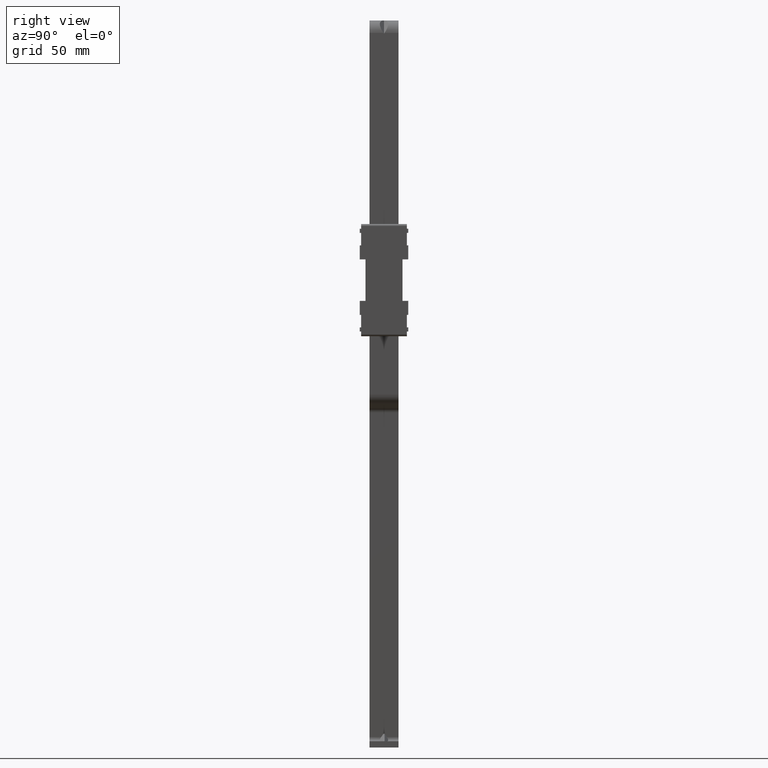
[diagram: clean part render]
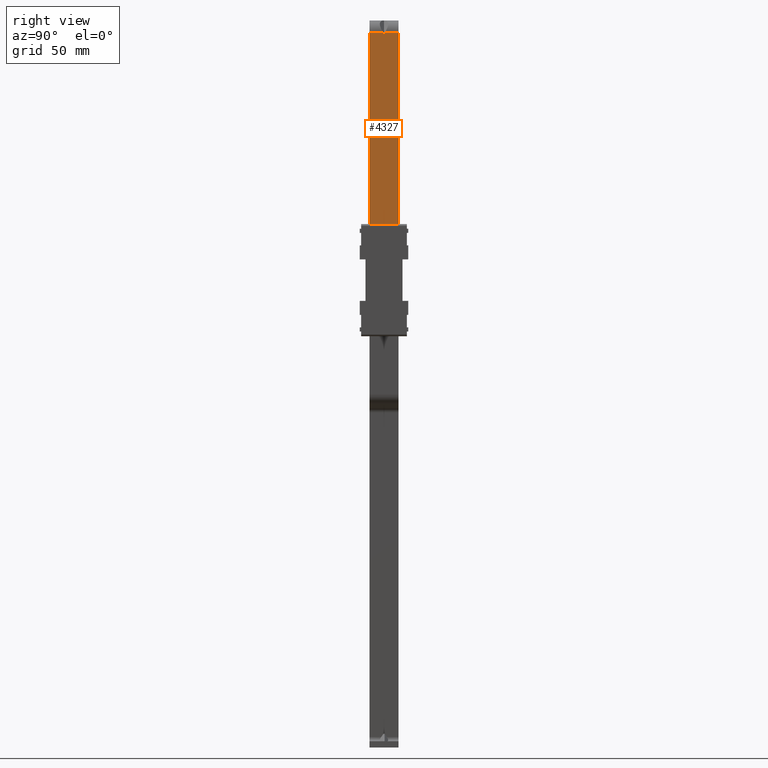
[diagram: same view with one face highlighted and labeled with its STEP entity id]
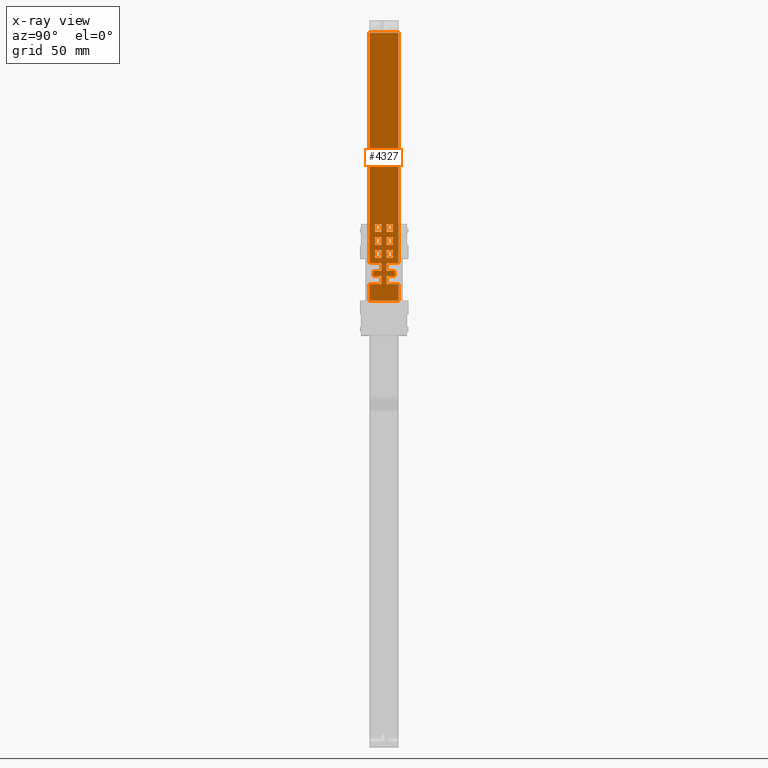
[diagram: x-ray of the same camera — body ghosted, the highlighted face saturated]
A machine part, right view. The second image highlights one B-rep face of the part: STEP entity #4327.
The next image is the same camera in x-ray: the body ghosted, the highlighted face saturated — about 0% of this face is hidden behind the body in this view.
In plain terms, the highlighted face is a freeform B-spline surface patch.
Its self-contained STEP definition (entity closure, byte-faithful):
#2566=CARTESIAN_POINT('',(11.900000183954401,-0.257307696779341,119.000056362026000));
#2567=VERTEX_POINT('',#2566);
#2583=CARTESIAN_POINT('',(11.900000183740220,4.868301E-014,118.636168327751610));
#2584=VERTEX_POINT('',#2583);
#2585=CARTESIAN_POINT('',(11.900000183740220,4.868301E-014,118.636168327751610));
#2586=CARTESIAN_POINT('',(11.900000183954401,-0.257307696779341,119.000056362026000));
#2587=QUASI_UNIFORM_CURVE('',1,(#2585,#2586),.UNSPECIFIED.,.F.,.U.);
#2588=EDGE_CURVE('',#2584,#2567,#2587,.T.);
#2618=CARTESIAN_POINT('',(11.900000183954401,0.257307696779230,119.000056362026000));
#2619=VERTEX_POINT('',#2618);
#2620=CARTESIAN_POINT('',(11.900000183740220,4.868301E-014,118.636168327751610));
#2621=CARTESIAN_POINT('',(11.900000183954401,0.257307696779230,119.000056362026000));
#2622=QUASI_UNIFORM_CURVE('',1,(#2620,#2621),.UNSPECIFIED.,.F.,.U.);
#2623=EDGE_CURVE('',#2584,#2619,#2622,.T.);
#2962=CARTESIAN_POINT('',(11.900000183740200,1.249999999999972,14.460006222166401));
#2963=VERTEX_POINT('',#2962);
#2964=CARTESIAN_POINT('',(11.900000183740159,1.250000000000000,10.660006222166400));
#2965=VERTEX_POINT('',#2964);
#2966=CARTESIAN_POINT('',(11.900000183740200,1.249999999999972,14.460006222166401));
#2967=CARTESIAN_POINT('',(11.900000183740159,1.250000000000000,10.660006222166400));
#2968=QUASI_UNIFORM_CURVE('',1,(#2966,#2967),.UNSPECIFIED.,.F.,.U.);
#2969=EDGE_CURVE('',#2963,#2965,#2968,.T.);
#2998=CARTESIAN_POINT('',(11.900000183740159,4.250000000000000,14.460006222166401));
#2999=VERTEX_POINT('',#2998);
#3000=CARTESIAN_POINT('',(11.900000183740159,4.250000000000000,14.460006222166401));
#3001=CARTESIAN_POINT('',(11.900000183740200,1.249999999999972,14.460006222166401));
#3002=QUASI_UNIFORM_CURVE('',1,(#3000,#3001),.UNSPECIFIED.,.F.,.U.);
#3003=EDGE_CURVE('',#2999,#2963,#3002,.T.);
#3026=CARTESIAN_POINT('',(11.900000183740159,4.250000000000000,10.660006222166400));
#3027=VERTEX_POINT('',#3026);
#3028=CARTESIAN_POINT('',(11.900000183740159,4.250000000000000,10.660006222166400));
#3029=CARTESIAN_POINT('',(11.900000183740159,4.250000000000000,14.460006222166401));
#3030=QUASI_UNIFORM_CURVE('',1,(#3028,#3029),.UNSPECIFIED.,.F.,.U.);
#3031=EDGE_CURVE('',#3027,#2999,#3030,.T.);
#3054=CARTESIAN_POINT('',(11.900000183740159,1.250000000000000,10.660006222166400));
#3055=CARTESIAN_POINT('',(11.900000183740159,4.250000000000000,10.660006222166400));
#3056=QUASI_UNIFORM_CURVE('',1,(#3054,#3055),.UNSPECIFIED.,.F.,.U.);
#3057=EDGE_CURVE('',#2965,#3027,#3056,.T.);
#3074=CARTESIAN_POINT('',(11.900000183740159,-4.250000000000000,10.660006222166400));
#3075=VERTEX_POINT('',#3074);
#3076=CARTESIAN_POINT('',(11.900000183740200,-4.250000000000000,14.460006222166401));
#3077=VERTEX_POINT('',#3076);
#3078=CARTESIAN_POINT('',(11.900000183740159,-4.250000000000000,10.660006222166400));
#3079=CARTESIAN_POINT('',(11.900000183740200,-4.250000000000000,14.460006222166401));
#3080=QUASI_UNIFORM_CURVE('',1,(#3078,#3079),.UNSPECIFIED.,.F.,.U.);
#3081=EDGE_CURVE('',#3075,#3077,#3080,.T.);
#3110=CARTESIAN_POINT('',(11.900000183740159,-1.250000000000000,10.660006222166400));
#3111=VERTEX_POINT('',#3110);
#3112=CARTESIAN_POINT('',(11.900000183740159,-1.250000000000000,10.660006222166400));
#3113=CARTESIAN_POINT('',(11.900000183740159,-4.250000000000000,10.660006222166400));
#3114=QUASI_UNIFORM_CURVE('',1,(#3112,#3113),.UNSPECIFIED.,.F.,.U.);
#3115=EDGE_CURVE('',#3111,#3075,#3114,.T.);
#3138=CARTESIAN_POINT('',(11.900000183740159,-1.250000000000000,14.460006222166401));
#3139=VERTEX_POINT('',#3138);
#3140=CARTESIAN_POINT('',(11.900000183740159,-1.250000000000000,14.460006222166401));
#3141=CARTESIAN_POINT('',(11.900000183740159,-1.250000000000000,10.660006222166400));
#3142=QUASI_UNIFORM_CURVE('',1,(#3140,#3141),.UNSPECIFIED.,.F.,.U.);
#3143=EDGE_CURVE('',#3139,#3111,#3142,.T.);
#3166=CARTESIAN_POINT('',(11.900000183740200,-4.250000000000000,14.460006222166401));
#3167=CARTESIAN_POINT('',(11.900000183740159,-1.250000000000000,14.460006222166401));
#3168=QUASI_UNIFORM_CURVE('',1,(#3166,#3167),.UNSPECIFIED.,.F.,.U.);
#3169=EDGE_CURVE('',#3077,#3139,#3168,.T.);
#3186=CARTESIAN_POINT('',(11.900000183740200,-1.250000000000084,20.740006222166400));
#3187=VERTEX_POINT('',#3186);
#3188=CARTESIAN_POINT('',(11.900000183740159,-4.250000000000000,20.740006222166400));
#3189=VERTEX_POINT('',#3188);
#3190=CARTESIAN_POINT('',(11.900000183740200,-1.250000000000084,20.740006222166400));
#3191=CARTESIAN_POINT('',(11.900000183740159,-4.250000000000000,20.740006222166400));
#3192=QUASI_UNIFORM_CURVE('',1,(#3190,#3191),.UNSPECIFIED.,.F.,.U.);
#3193=EDGE_CURVE('',#3187,#3189,#3192,.T.);
#3222=CARTESIAN_POINT('',(11.900000183740159,-1.250000000000000,16.940006222166399));
#3223=VERTEX_POINT('',#3222);
#3224=CARTESIAN_POINT('',(11.900000183740159,-1.250000000000000,16.940006222166399));
#3225=CARTESIAN_POINT('',(11.900000183740200,-1.250000000000084,20.740006222166400));
#3226=QUASI_UNIFORM_CURVE('',1,(#3224,#3225),.UNSPECIFIED.,.F.,.U.);
#3227=EDGE_CURVE('',#3223,#3187,#3226,.T.);
#3250=CARTESIAN_POINT('',(11.900000183740159,-4.250000000000000,16.940006222166399));
#3251=VERTEX_POINT('',#3250);
#3252=CARTESIAN_POINT('',(11.900000183740159,-4.250000000000000,16.940006222166399));
#3253=CARTESIAN_POINT('',(11.900000183740159,-1.250000000000000,16.940006222166399));
#3254=QUASI_UNIFORM_CURVE('',1,(#3252,#3253),.UNSPECIFIED.,.F.,.U.);
#3255=EDGE_CURVE('',#3251,#3223,#3254,.T.);
#3278=CARTESIAN_POINT('',(11.900000183740159,-4.250000000000000,20.740006222166400));
#3279=CARTESIAN_POINT('',(11.900000183740159,-4.250000000000000,16.940006222166399));
#3280=QUASI_UNIFORM_CURVE('',1,(#3278,#3279),.UNSPECIFIED.,.F.,.U.);
#3281=EDGE_CURVE('',#3189,#3251,#3280,.T.);
#3298=CARTESIAN_POINT('',(11.900000183740200,-1.250000000000084,27.020006222166401));
#3299=VERTEX_POINT('',#3298);
#3300=CARTESIAN_POINT('',(11.900000183740159,-4.250000000000000,27.020006222166401));
#3301=VERTEX_POINT('',#3300);
#3302=CARTESIAN_POINT('',(11.900000183740200,-1.250000000000084,27.020006222166401));
#3303=CARTESIAN_POINT('',(11.900000183740159,-4.250000000000000,27.020006222166401));
#3304=QUASI_UNIFORM_CURVE('',1,(#3302,#3303),.UNSPECIFIED.,.F.,.U.);
#3305=EDGE_CURVE('',#3299,#3301,#3304,.T.);
#3334=CARTESIAN_POINT('',(11.900000183740159,-1.250000000000000,23.220006222166401));
#3335=VERTEX_POINT('',#3334);
#3336=CARTESIAN_POINT('',(11.900000183740159,-1.250000000000000,23.220006222166401));
#3337=CARTESIAN_POINT('',(11.900000183740200,-1.250000000000084,27.020006222166401));
#3338=QUASI_UNIFORM_CURVE('',1,(#3336,#3337),.UNSPECIFIED.,.F.,.U.);
#3339=EDGE_CURVE('',#3335,#3299,#3338,.T.);
#3362=CARTESIAN_POINT('',(11.900000183740159,-4.250000000000000,23.220006222166401));
#3363=VERTEX_POINT('',#3362);
#3364=CARTESIAN_POINT('',(11.900000183740159,-4.250000000000000,23.220006222166401));
#3365=CARTESIAN_POINT('',(11.900000183740159,-1.250000000000000,23.220006222166401));
#3366=QUASI_UNIFORM_CURVE('',1,(#3364,#3365),.UNSPECIFIED.,.F.,.U.);
#3367=EDGE_CURVE('',#3363,#3335,#3366,.T.);
#3390=CARTESIAN_POINT('',(11.900000183740159,-4.250000000000000,27.020006222166401));
#3391=CARTESIAN_POINT('',(11.900000183740159,-4.250000000000000,23.220006222166401));
#3392=QUASI_UNIFORM_CURVE('',1,(#3390,#3391),.UNSPECIFIED.,.F.,.U.);
#3393=EDGE_CURVE('',#3301,#3363,#3392,.T.);
#3410=CARTESIAN_POINT('',(11.900000183740159,1.250000000000000,27.020006222166401));
#3411=VERTEX_POINT('',#3410);
#3412=CARTESIAN_POINT('',(11.900000183740200,4.250000000000000,27.020006222166401));
#3413=VERTEX_POINT('',#3412);
#3414=CARTESIAN_POINT('',(11.900000183740159,1.250000000000000,27.020006222166401));
#3415=CARTESIAN_POINT('',(11.900000183740200,4.250000000000000,27.020006222166401));
#3416=QUASI_UNIFORM_CURVE('',1,(#3414,#3415),.UNSPECIFIED.,.F.,.U.);
#3417=EDGE_CURVE('',#3411,#3413,#3416,.T.);
#3446=CARTESIAN_POINT('',(11.900000183740159,1.250000000000000,23.220006222166401));
#3447=VERTEX_POINT('',#3446);
#3448=CARTESIAN_POINT('',(11.900000183740159,1.250000000000000,23.220006222166401));
#3449=CARTESIAN_POINT('',(11.900000183740159,1.250000000000000,27.020006222166401));
#3450=QUASI_UNIFORM_CURVE('',1,(#3448,#3449),.UNSPECIFIED.,.F.,.U.);
#3451=EDGE_CURVE('',#3447,#3411,#3450,.T.);
#3474=CARTESIAN_POINT('',(11.900000183740159,4.250000000000000,23.220006222166401));
#3475=VERTEX_POINT('',#3474);
#3476=CARTESIAN_POINT('',(11.900000183740159,4.250000000000000,23.220006222166401));
#3477=CARTESIAN_POINT('',(11.900000183740159,1.250000000000000,23.220006222166401));
#3478=QUASI_UNIFORM_CURVE('',1,(#3476,#3477),.UNSPECIFIED.,.F.,.U.);
#3479=EDGE_CURVE('',#3475,#3447,#3478,.T.);
#3502=CARTESIAN_POINT('',(11.900000183740200,4.250000000000000,27.020006222166401));
#3503=CARTESIAN_POINT('',(11.900000183740159,4.250000000000000,23.220006222166401));
#3504=QUASI_UNIFORM_CURVE('',1,(#3502,#3503),.UNSPECIFIED.,.F.,.U.);
#3505=EDGE_CURVE('',#3413,#3475,#3504,.T.);
#3522=CARTESIAN_POINT('',(11.900000183740159,4.250000000000000,16.940006222166399));
#3523=VERTEX_POINT('',#3522);
#3524=CARTESIAN_POINT('',(11.900000183740200,1.250000000000084,16.940006222166399));
#3525=VERTEX_POINT('',#3524);
#3526=CARTESIAN_POINT('',(11.900000183740159,4.250000000000000,16.940006222166399));
#3527=CARTESIAN_POINT('',(11.900000183740200,1.250000000000084,16.940006222166399));
#3528=QUASI_UNIFORM_CURVE('',1,(#3526,#3527),.UNSPECIFIED.,.F.,.U.);
#3529=EDGE_CURVE('',#3523,#3525,#3528,.T.);
#3558=CARTESIAN_POINT('',(11.900000183740159,4.250000000000000,20.740006222166400));
#3559=VERTEX_POINT('',#3558);
#3560=CARTESIAN_POINT('',(11.900000183740159,4.250000000000000,20.740006222166400));
#3561=CARTESIAN_POINT('',(11.900000183740159,4.250000000000000,16.940006222166399));
#3562=QUASI_UNIFORM_CURVE('',1,(#3560,#3561),.UNSPECIFIED.,.F.,.U.);
#3563=EDGE_CURVE('',#3559,#3523,#3562,.T.);
#3586=CARTESIAN_POINT('',(11.900000183740159,1.250000000000000,20.740006222166400));
#3587=VERTEX_POINT('',#3586);
#3588=CARTESIAN_POINT('',(11.900000183740159,1.250000000000000,20.740006222166400));
#3589=CARTESIAN_POINT('',(11.900000183740159,4.250000000000000,20.740006222166400));
#3590=QUASI_UNIFORM_CURVE('',1,(#3588,#3589),.UNSPECIFIED.,.F.,.U.);
#3591=EDGE_CURVE('',#3587,#3559,#3590,.T.);
#3614=CARTESIAN_POINT('',(11.900000183740200,1.250000000000084,16.940006222166399));
#3615=CARTESIAN_POINT('',(11.900000183740159,1.250000000000000,20.740006222166400));
#3616=QUASI_UNIFORM_CURVE('',1,(#3614,#3615),.UNSPECIFIED.,.F.,.U.);
#3617=EDGE_CURVE('',#3525,#3587,#3616,.T.);
#3634=CARTESIAN_POINT('',(11.900000183740159,-1.250000000000000,-1.899993777833595));
#3635=VERTEX_POINT('',#3634);
#3636=CARTESIAN_POINT('',(11.900000183740159,-7.000000332482220,-1.899993777833595));
#3637=VERTEX_POINT('',#3636);
#3638=CARTESIAN_POINT('',(11.900000183740159,-1.250000000000000,-1.899993777833595));
#3639=CARTESIAN_POINT('',(11.900000183740159,-7.000000332482220,-1.899993777833595));
#3640=QUASI_UNIFORM_CURVE('',1,(#3638,#3639),.UNSPECIFIED.,.F.,.U.);
#3641=EDGE_CURVE('',#3635,#3637,#3640,.T.);
#3670=CARTESIAN_POINT('',(11.900000183740159,-1.250000000000000,1.900006222166405));
#3671=VERTEX_POINT('',#3670);
#3672=CARTESIAN_POINT('',(11.900000183740159,-1.250000000000000,1.900006222166405));
#3673=CARTESIAN_POINT('',(11.900000183740159,-1.250000000000000,-1.899993777833595));
#3674=QUASI_UNIFORM_CURVE('',1,(#3672,#3673),.UNSPECIFIED.,.F.,.U.);
#3675=EDGE_CURVE('',#3671,#3635,#3674,.T.);
#3698=CARTESIAN_POINT('',(11.900000183740159,-5.250000000000000,1.900006222166405));
#3699=VERTEX_POINT('',#3698);
#3700=CARTESIAN_POINT('',(11.900000183740159,-5.250000000000000,1.900006222166405));
#3701=CARTESIAN_POINT('',(11.900000183740159,-1.250000000000000,1.900006222166405));
#3702=QUASI_UNIFORM_CURVE('',1,(#3700,#3701),.UNSPECIFIED.,.F.,.U.);
#3703=EDGE_CURVE('',#3699,#3671,#3702,.T.);
#3726=CARTESIAN_POINT('',(11.900000183740159,-5.250000000000000,4.380006222166405));
#3727=VERTEX_POINT('',#3726);
#3728=CARTESIAN_POINT('',(11.900000183740159,-5.250000000000000,4.380006222166405));
#3729=CARTESIAN_POINT('',(11.900000183740159,-5.250000000000000,1.900006222166405));
#3730=QUASI_UNIFORM_CURVE('',1,(#3728,#3729),.UNSPECIFIED.,.F.,.U.);
#3731=EDGE_CURVE('',#3727,#3699,#3730,.T.);
#3754=CARTESIAN_POINT('',(11.900000183740159,-1.250000000000000,4.380006222166405));
#3755=VERTEX_POINT('',#3754);
#3756=CARTESIAN_POINT('',(11.900000183740159,-1.250000000000000,4.380006222166405));
#3757=CARTESIAN_POINT('',(11.900000183740159,-5.250000000000000,4.380006222166405));
#3758=QUASI_UNIFORM_CURVE('',1,(#3756,#3757),.UNSPECIFIED.,.F.,.U.);
#3759=EDGE_CURVE('',#3755,#3727,#3758,.T.);
#3782=CARTESIAN_POINT('',(11.900000183740159,-1.250000000000000,8.180006222166409));
#3783=VERTEX_POINT('',#3782);
#3784=CARTESIAN_POINT('',(11.900000183740159,-1.250000000000000,8.180006222166409));
#3785=CARTESIAN_POINT('',(11.900000183740159,-1.250000000000000,4.380006222166405));
#3786=QUASI_UNIFORM_CURVE('',1,(#3784,#3785),.UNSPECIFIED.,.F.,.U.);
#3787=EDGE_CURVE('',#3783,#3755,#3786,.T.);
#3810=CARTESIAN_POINT('',(11.900000183740159,-7.000000332482220,8.180006222166409));
#3811=VERTEX_POINT('',#3810);
#3812=CARTESIAN_POINT('',(11.900000183740159,-7.000000332482220,8.180006222166409));
#3813=CARTESIAN_POINT('',(11.900000183740159,-1.250000000000000,8.180006222166409));
#3814=QUASI_UNIFORM_CURVE('',1,(#3812,#3813),.UNSPECIFIED.,.F.,.U.);
#3815=EDGE_CURVE('',#3811,#3783,#3814,.T.);
#3838=CARTESIAN_POINT('',(11.900000183740159,1.250000000000000,4.380006222166405));
#3839=VERTEX_POINT('',#3838);
#3840=CARTESIAN_POINT('',(11.900000183740159,1.250000000000000,8.180006222166409));
#3841=VERTEX_POINT('',#3840);
#3842=CARTESIAN_POINT('',(11.900000183740159,1.250000000000000,4.380006222166405));
#3843=CARTESIAN_POINT('',(11.900000183740159,1.250000000000000,8.180006222166409));
#3844=QUASI_UNIFORM_CURVE('',1,(#3842,#3843),.UNSPECIFIED.,.F.,.U.);
#3845=EDGE_CURVE('',#3839,#3841,#3844,.T.);
#3874=CARTESIAN_POINT('',(11.900000183740159,5.250000000000000,4.380006222166400));
#3875=VERTEX_POINT('',#3874);
#3876=CARTESIAN_POINT('',(11.900000183740159,5.250000000000000,4.380006222166400));
#3877=CARTESIAN_POINT('',(11.900000183740159,1.250000000000000,4.380006222166405));
#3878=QUASI_UNIFORM_CURVE('',1,(#3876,#3877),.UNSPECIFIED.,.F.,.U.);
#3879=EDGE_CURVE('',#3875,#3839,#3878,.T.);
#3902=CARTESIAN_POINT('',(11.900000183740159,5.250000000000000,1.900006222166405));
#3903=VERTEX_POINT('',#3902);
#3904=CARTESIAN_POINT('',(11.900000183740159,5.250000000000000,1.900006222166405));
#3905=CARTESIAN_POINT('',(11.900000183740159,5.250000000000000,4.380006222166400));
#3906=QUASI_UNIFORM_CURVE('',1,(#3904,#3905),.UNSPECIFIED.,.F.,.U.);
#3907=EDGE_CURVE('',#3903,#3875,#3906,.T.);
#3930=CARTESIAN_POINT('',(11.900000183740159,1.250000000000000,1.900006222166405));
#3931=VERTEX_POINT('',#3930);
#3932=CARTESIAN_POINT('',(11.900000183740159,1.250000000000000,1.900006222166405));
#3933=CARTESIAN_POINT('',(11.900000183740159,5.250000000000000,1.900006222166405));
#3934=QUASI_UNIFORM_CURVE('',1,(#3932,#3933),.UNSPECIFIED.,.F.,.U.);
#3935=EDGE_CURVE('',#3931,#3903,#3934,.T.);
#3958=CARTESIAN_POINT('',(11.900000183740159,1.250000000000000,-1.899993777833595));
#3959=VERTEX_POINT('',#3958);
#3960=CARTESIAN_POINT('',(11.900000183740159,1.250000000000000,-1.899993777833595));
#3961=CARTESIAN_POINT('',(11.900000183740159,1.250000000000000,1.900006222166405));
#3962=QUASI_UNIFORM_CURVE('',1,(#3960,#3961),.UNSPECIFIED.,.F.,.U.);
#3963=EDGE_CURVE('',#3959,#3931,#3962,.T.);
#3986=CARTESIAN_POINT('',(11.900000183740200,7.000000332482100,-1.899993777833595));
#3987=VERTEX_POINT('',#3986);
#3988=CARTESIAN_POINT('',(11.900000183740200,7.000000332482100,-1.899993777833595));
#3989=CARTESIAN_POINT('',(11.900000183740159,1.250000000000000,-1.899993777833595));
#3990=QUASI_UNIFORM_CURVE('',1,(#3988,#3989),.UNSPECIFIED.,.F.,.U.);
#3991=EDGE_CURVE('',#3987,#3959,#3990,.T.);
#4014=CARTESIAN_POINT('',(11.900000183740159,7.000000332482220,8.180006222166409));
#4015=VERTEX_POINT('',#4014);
#4016=CARTESIAN_POINT('',(11.900000183740159,1.250000000000000,8.180006222166409));
#4017=CARTESIAN_POINT('',(11.900000183740159,7.000000332482220,8.180006222166409));
#4018=QUASI_UNIFORM_CURVE('',1,(#4016,#4017),.UNSPECIFIED.,.F.,.U.);
#4019=EDGE_CURVE('',#3841,#4015,#4018,.T.);
#4044=CARTESIAN_POINT('',(11.900000183740200,-7.000000332482269,-9.999993777833540));
#4045=VERTEX_POINT('',#4044);
#4058=CARTESIAN_POINT('',(11.900000183740200,7.000000332482050,-9.999993777833540));
#4059=VERTEX_POINT('',#4058);
#4065=CARTESIAN_POINT('',(11.900000183740200,7.000000332482050,-9.999993777833540));
#4066=CARTESIAN_POINT('',(11.900000183740200,-7.000000332482269,-9.999993777833540));
#4067=QUASI_UNIFORM_CURVE('',1,(#4065,#4066),.UNSPECIFIED.,.F.,.U.);
#4068=EDGE_CURVE('',#4059,#4045,#4067,.T.);
#4135=CARTESIAN_POINT('',(11.900000183954401,7.000000332482050,119.000056362026000));
#4136=VERTEX_POINT('',#4135);
#4137=CARTESIAN_POINT('',(11.900000183954401,7.000000332482050,119.000056362026000));
#4138=CARTESIAN_POINT('',(11.900000183954401,0.257307696779230,119.000056362026000));
#4139=QUASI_UNIFORM_CURVE('',1,(#4137,#4138),.UNSPECIFIED.,.F.,.U.);
#4140=EDGE_CURVE('',#4136,#2619,#4139,.T.);
#4171=CARTESIAN_POINT('',(11.900000183740200,7.000000332482050,-9.999993777833540));
#4172=CARTESIAN_POINT('',(11.900000183740200,7.000000332482100,-1.899993777833595));
#4173=QUASI_UNIFORM_CURVE('',1,(#4171,#4172),.UNSPECIFIED.,.F.,.U.);
#4174=EDGE_CURVE('',#4059,#3987,#4173,.T.);
#4190=CARTESIAN_POINT('',(11.900000183740200,-7.000000332482269,-9.999993777833540));
#4191=CARTESIAN_POINT('',(11.900000183740159,-7.000000332482220,-1.899993777833595));
#4192=QUASI_UNIFORM_CURVE('',1,(#4190,#4191),.UNSPECIFIED.,.F.,.U.);
#4193=EDGE_CURVE('',#4045,#3637,#4192,.T.);
#4223=CARTESIAN_POINT('',(11.900000183954401,-7.000000332482269,119.000056362026000));
#4224=VERTEX_POINT('',#4223);
#4225=CARTESIAN_POINT('',(11.900000183740159,-7.000000332482220,8.180006222166409));
#4226=CARTESIAN_POINT('',(11.900000183954401,-7.000000332482269,119.000056362026000));
#4227=QUASI_UNIFORM_CURVE('',1,(#4225,#4226),.UNSPECIFIED.,.F.,.U.);
#4228=EDGE_CURVE('',#3811,#4224,#4227,.T.);
#4253=CARTESIAN_POINT('',(11.900000183740200,-7.699300469984518,125.443606194564500));
#4254=CARTESIAN_POINT('',(11.900000183740200,-7.699300469984518,-16.443549377123659));
#4255=CARTESIAN_POINT('',(11.900000183740200,7.699300720323987,125.443606194564500));
#4256=CARTESIAN_POINT('',(11.900000183740200,7.699300720323987,-16.443549377123659));
#4257=B_SPLINE_SURFACE_WITH_KNOTS('',1,1,((#4253,#4255),(#4254,#4256)),.UNSPECIFIED.,.F.,.F.,.U.,(2,2),(2,2),(0.0,141.887155571688200),(0.0,15.398601190308501),.UNSPECIFIED.);
#4258=ORIENTED_EDGE('',*,*,#2623,.F.);
#4259=ORIENTED_EDGE('',*,*,#2588,.T.);
#4260=CARTESIAN_POINT('',(11.900000183954401,-0.257307696779341,119.000056362026000));
#4261=CARTESIAN_POINT('',(11.900000183954401,-7.000000332482269,119.000056362026000));
#4262=QUASI_UNIFORM_CURVE('',1,(#4260,#4261),.UNSPECIFIED.,.F.,.U.);
#4263=EDGE_CURVE('',#2567,#4224,#4262,.T.);
#4264=ORIENTED_EDGE('',*,*,#4263,.T.);
#4265=ORIENTED_EDGE('',*,*,#4228,.F.);
#4266=ORIENTED_EDGE('',*,*,#3815,.T.);
#4267=ORIENTED_EDGE('',*,*,#3787,.T.);
#4268=ORIENTED_EDGE('',*,*,#3759,.T.);
#4269=ORIENTED_EDGE('',*,*,#3731,.T.);
#4270=ORIENTED_EDGE('',*,*,#3703,.T.);
#4271=ORIENTED_EDGE('',*,*,#3675,.T.);
#4272=ORIENTED_EDGE('',*,*,#3641,.T.);
#4273=ORIENTED_EDGE('',*,*,#4193,.F.);
#4274=ORIENTED_EDGE('',*,*,#4068,.F.);
#4275=ORIENTED_EDGE('',*,*,#4174,.T.);
#4276=ORIENTED_EDGE('',*,*,#3991,.T.);
#4277=ORIENTED_EDGE('',*,*,#3963,.T.);
#4278=ORIENTED_EDGE('',*,*,#3935,.T.);
#4279=ORIENTED_EDGE('',*,*,#3907,.T.);
#4280=ORIENTED_EDGE('',*,*,#3879,.T.);
#4281=ORIENTED_EDGE('',*,*,#3845,.T.);
#4282=ORIENTED_EDGE('',*,*,#4019,.T.);
#4283=CARTESIAN_POINT('',(11.900000183740159,7.000000332482220,8.180006222166409));
#4284=CARTESIAN_POINT('',(11.900000183954401,7.000000332482050,119.000056362026000));
#4285=QUASI_UNIFORM_CURVE('',1,(#4283,#4284),.UNSPECIFIED.,.F.,.U.);
#4286=EDGE_CURVE('',#4015,#4136,#4285,.T.);
#4287=ORIENTED_EDGE('',*,*,#4286,.T.);
#4288=ORIENTED_EDGE('',*,*,#4140,.T.);
#4289=EDGE_LOOP('',(#4258,#4259,#4264,#4265,#4266,#4267,#4268,#4269,#4270,#4271,#4272,#4273,#4274,#4275,#4276,#4277,#4278,#4279,#4280,#4281,#4282,#4287,#4288));
#4290=FACE_OUTER_BOUND('',#4289,.T.);
#4291=ORIENTED_EDGE('',*,*,#3057,.F.);
#4292=ORIENTED_EDGE('',*,*,#2969,.F.);
#4293=ORIENTED_EDGE('',*,*,#3003,.F.);
#4294=ORIENTED_EDGE('',*,*,#3031,.F.);
#4295=EDGE_LOOP('',(#4291,#4292,#4293,#4294));
#4296=FACE_BOUND('',#4295,.T.);
#4297=ORIENTED_EDGE('',*,*,#3417,.T.);
#4298=ORIENTED_EDGE('',*,*,#3505,.T.);
#4299=ORIENTED_EDGE('',*,*,#3479,.T.);
#4300=ORIENTED_EDGE('',*,*,#3451,.T.);
#4301=EDGE_LOOP('',(#4297,#4298,#4299,#4300));
#4302=FACE_BOUND('',#4301,.T.);
#4303=ORIENTED_EDGE('',*,*,#3529,.T.);
#4304=ORIENTED_EDGE('',*,*,#3617,.T.);
#4305=ORIENTED_EDGE('',*,*,#3591,.T.);
#4306=ORIENTED_EDGE('',*,*,#3563,.T.);
#4307=EDGE_LOOP('',(#4303,#4304,#4305,#4306));
#4308=FACE_BOUND('',#4307,.T.);
#4309=ORIENTED_EDGE('',*,*,#3393,.F.);
#4310=ORIENTED_EDGE('',*,*,#3305,.F.);
#4311=ORIENTED_EDGE('',*,*,#3339,.F.);
#4312=ORIENTED_EDGE('',*,*,#3367,.F.);
#4313=EDGE_LOOP('',(#4309,#4310,#4311,#4312));
#4314=FACE_BOUND('',#4313,.T.);
#4315=ORIENTED_EDGE('',*,*,#3281,.F.);
#4316=ORIENTED_EDGE('',*,*,#3193,.F.);
#4317=ORIENTED_EDGE('',*,*,#3227,.F.);
#4318=ORIENTED_EDGE('',*,*,#3255,.F.);
#4319=EDGE_LOOP('',(#4315,#4316,#4317,#4318));
#4320=FACE_BOUND('',#4319,.T.);
#4321=ORIENTED_EDGE('',*,*,#3081,.T.);
#4322=ORIENTED_EDGE('',*,*,#3169,.T.);
#4323=ORIENTED_EDGE('',*,*,#3143,.T.);
#4324=ORIENTED_EDGE('',*,*,#3115,.T.);
#4325=EDGE_LOOP('',(#4321,#4322,#4323,#4324));
#4326=FACE_BOUND('',#4325,.T.);
#4327=ADVANCED_FACE('',(#4290,#4296,#4302,#4308,#4314,#4320,#4326),#4257,.T.);